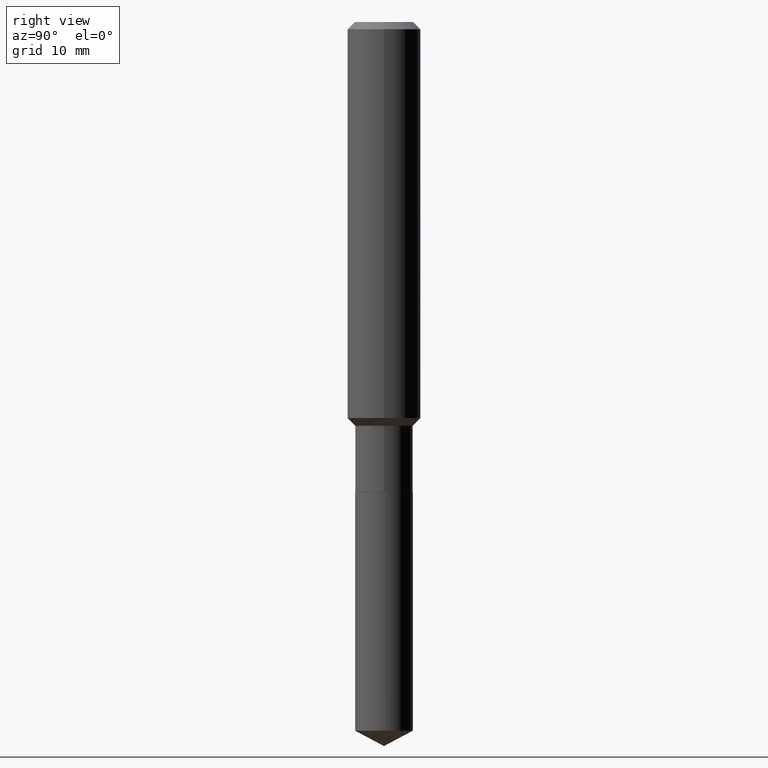
[diagram: clean part render]
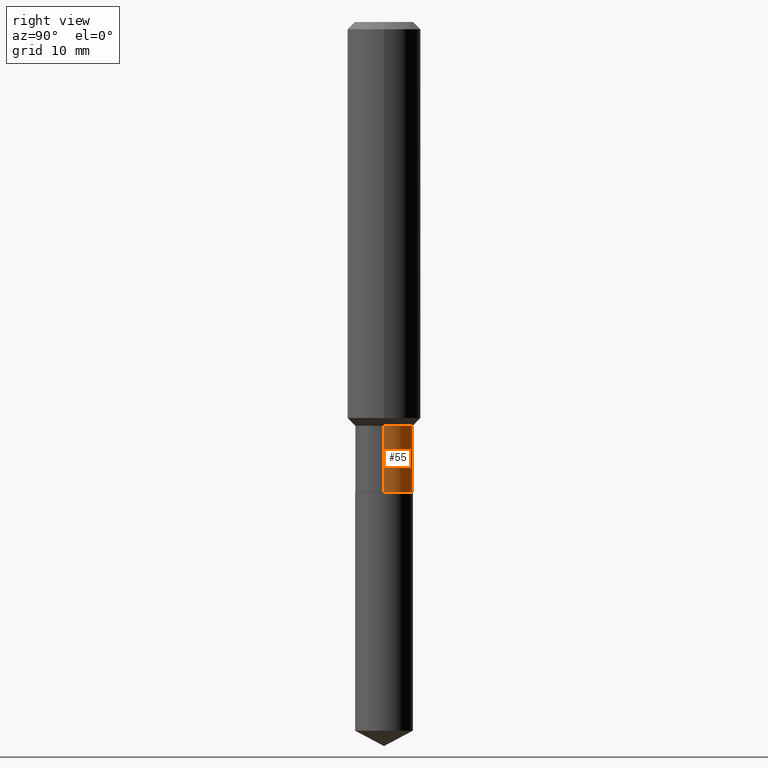
[diagram: same view with one face highlighted and labeled with its STEP entity id]
A machine part, right view. The second image highlights one B-rep face of the part: STEP entity #55.
In plain terms, the highlighted cylindrical surface (edge-blend (fillet) strip) has radius 3.1496 mm, axis along (-0, 0, 1).
Its self-contained STEP definition (entity closure, byte-faithful):
#31 = CARTESIAN_POINT ( 'NONE',  ( 4.241421097447501822E-29, -6.055625234089552182E-15, -1.734400000000000164 ) ) ;
#41 = AXIS2_PLACEMENT_3D ( 'NONE', #235, #370, #246 ) ;
#42 = CARTESIAN_POINT ( 'NONE',  ( 4.937646066568409466E-29, -7.049649971258195757E-15, -2.019099999999999895 ) ) ;
#55 = ADVANCED_FACE ( 'NONE', ( #120 ), #230, .T. ) ;
#70 = DIRECTION ( 'NONE',  ( 1.000000000000000000, -6.982962677686265133E-15, 0.000000000000000000 ) ) ;
#86 = EDGE_CURVE ( 'NONE', #299, #129, #201, .T. ) ;
#93 = CARTESIAN_POINT ( 'NONE',  ( 0.1239999999999999575, -6.921512606122648718E-15, -1.734400000000000164 ) ) ;
#116 = CARTESIAN_POINT ( 'NONE',  ( -0.1239999999999999991, 8.810729923425242242E-16, -6.099479511916082446E-30 ) ) ;
#120 = FACE_OUTER_BOUND ( 'NONE', #383, .T. ) ;
#122 = VECTOR ( 'NONE', #276, 39.37007874015748143 ) ;
#127 = LINE ( 'NONE', #116, #122 ) ;
#129 = VERTEX_POINT ( 'NONE', #152 ) ;
#135 = DIRECTION ( 'NONE',  ( -2.445468806185136877E-29, 3.491481338843145188E-15, 1.000000000000000000 ) ) ;
#152 = CARTESIAN_POINT ( 'NONE',  ( -0.1240000000000000269, -5.671564610331350140E-15, -2.019099999999999895 ) ) ;
#173 = ORIENTED_EDGE ( 'NONE', *, *, #86, .T. ) ;
#185 = DIRECTION ( 'NONE',  ( -2.445468806185136597E-29, 3.491481338843145583E-15, 1.000000000000000000 ) ) ;
#201 = CIRCLE ( 'NONE', #355, 0.1240000000000000130 ) ;
#217 = EDGE_CURVE ( 'NONE', #129, #319, #127, .T. ) ;
#230 = CYLINDRICAL_SURFACE ( 'NONE', #41, 0.1239999999999999991 ) ;
#235 = CARTESIAN_POINT ( 'NONE',  ( 0.000000000000000000, 0.000000000000000000, 0.000000000000000000 ) ) ;
#246 = DIRECTION ( 'NONE',  ( 1.000000000000000000, -6.982962677686266711E-15, 4.876176775795935232E-29 ) ) ;
#276 = DIRECTION ( 'NONE',  ( -2.445468806185136877E-29, 3.491481338843145188E-15, 1.000000000000000000 ) ) ;
#285 = EDGE_CURVE ( 'NONE', #299, #374, #481, .T. ) ;
#293 = ORIENTED_EDGE ( 'NONE', *, *, #490, .F. ) ;
#299 = VERTEX_POINT ( 'NONE', #446 ) ;
#304 = CARTESIAN_POINT ( 'NONE',  ( 0.1239999999999999991, -8.658873720330970287E-16, 6.046459201986959935E-30 ) ) ;
#319 = VERTEX_POINT ( 'NONE', #352 ) ;
#333 = ORIENTED_EDGE ( 'NONE', *, *, #285, .F. ) ;
#352 = CARTESIAN_POINT ( 'NONE',  ( -0.1239999999999999575, -5.671564610331350140E-15, -1.734400000000000164 ) ) ;
#355 = AXIS2_PLACEMENT_3D ( 'NONE', #42, #185, #389 ) ;
#370 = DIRECTION ( 'NONE',  ( -2.445468806185136597E-29, 3.491481338843145583E-15, 1.000000000000000000 ) ) ;
#374 = VERTEX_POINT ( 'NONE', #93 ) ;
#383 = EDGE_LOOP ( 'NONE', ( #173, #402, #293, #333 ) ) ;
#389 = DIRECTION ( 'NONE',  ( 1.000000000000000000, -6.982962677686269866E-15, 0.000000000000000000 ) ) ;
#402 = ORIENTED_EDGE ( 'NONE', *, *, #217, .T. ) ;
#419 = DIRECTION ( 'NONE',  ( -2.445468806185136597E-29, 3.491481338843145583E-15, 1.000000000000000000 ) ) ;
#441 = CIRCLE ( 'NONE', #458, 0.1239999999999999575 ) ;
#446 = CARTESIAN_POINT ( 'NONE',  ( 0.1240000000000000130, -7.915537343291293082E-15, -2.019099999999999895 ) ) ;
#452 = VECTOR ( 'NONE', #135, 39.37007874015748143 ) ;
#458 = AXIS2_PLACEMENT_3D ( 'NONE', #31, #419, #70 ) ;
#481 = LINE ( 'NONE', #304, #452 ) ;
#490 = EDGE_CURVE ( 'NONE', #374, #319, #441, .T. ) ;